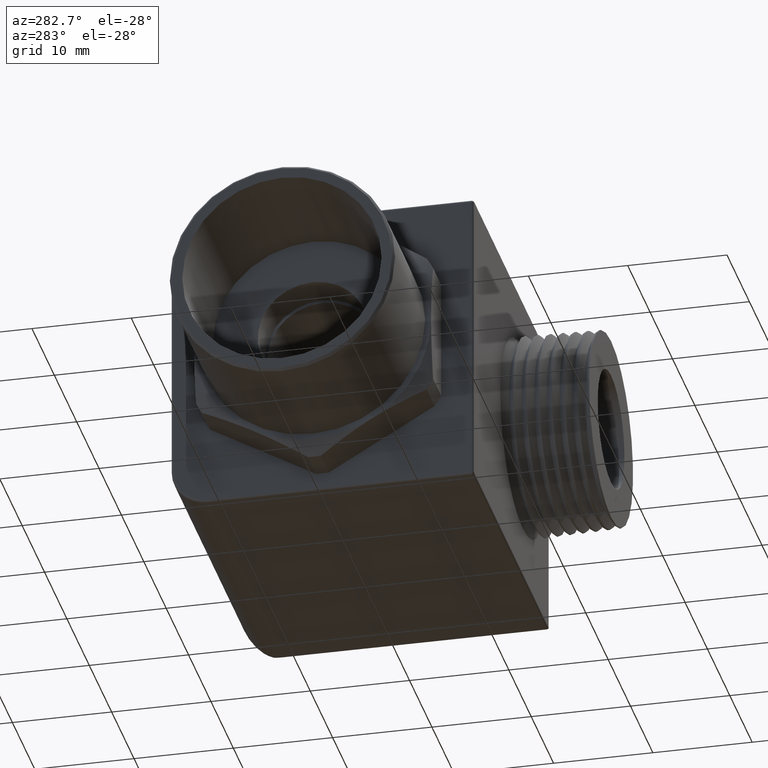
[diagram: clean part render]
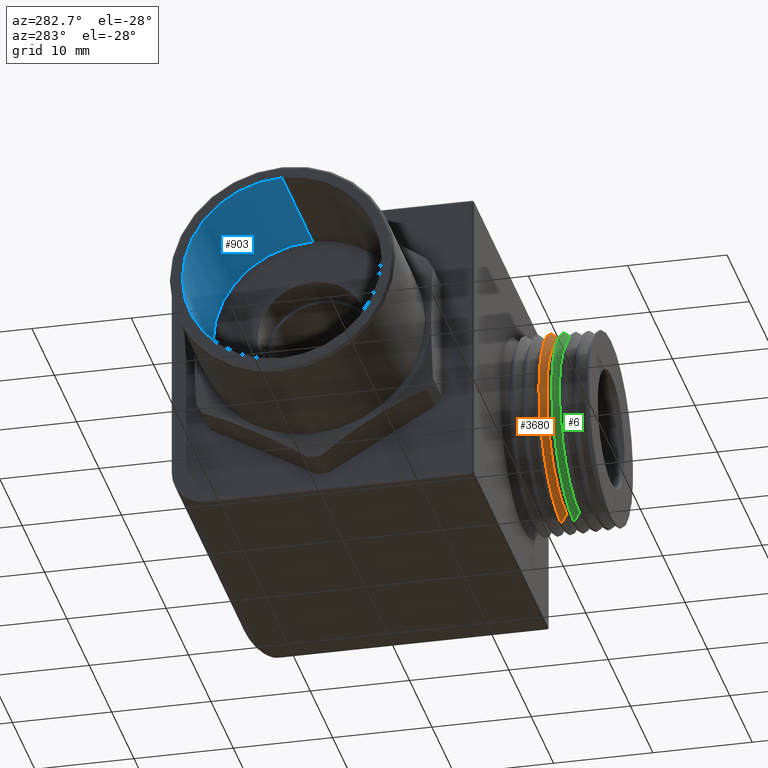
[diagram: same view with three faces highlighted in distinct colors, each labeled with its STEP entity id]
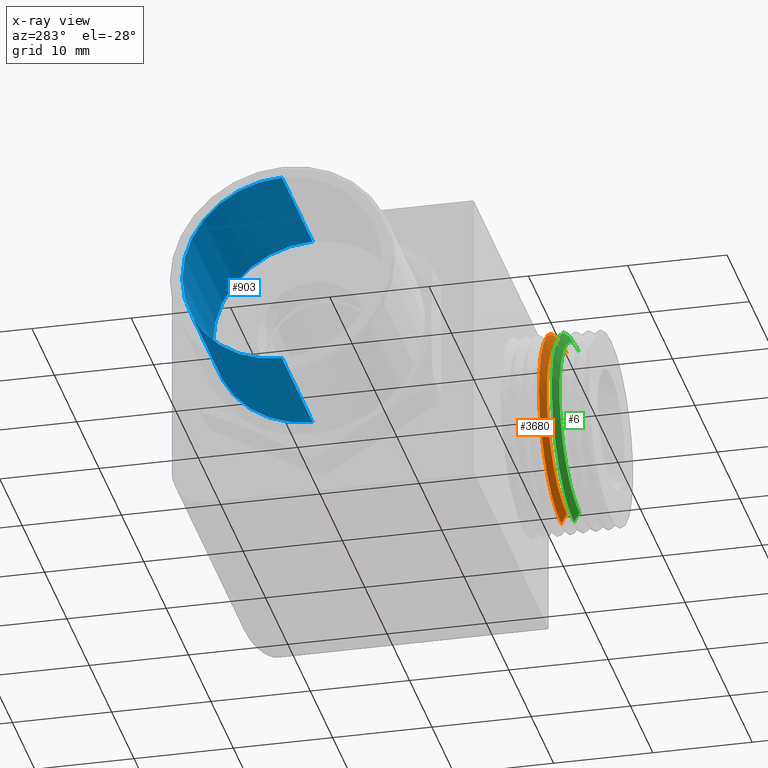
[diagram: x-ray of the same camera — body ghosted, the three highlighted faces saturated]
A machine part, auxiliary view with three faces highlighted in distinct colors.
The next image is the same camera in x-ray (body ghosted, the three faces saturated) — at least one of them is partly hidden behind the body in this view.
Their STEP definitions:

[orange] entity #3680 — the highlighted conical surface has half-angle 60 deg.
#215 = VERTEX_POINT ( 'NONE', #1568 ) ;
#216 = VERTEX_POINT ( 'NONE', #1567 ) ;
#218 = EDGE_CURVE ( 'NONE', #215, #219, #1566, .T. ) ;
#219 = VERTEX_POINT ( 'NONE', #1562 ) ;
#268 = VERTEX_POINT ( 'NONE', #1655 ) ;
#270 = EDGE_CURVE ( 'NONE', #216, #268, #1654, .T. ) ;
#509 = EDGE_CURVE ( 'NONE', #219, #268, #2086, .T. ) ;
#1562 = CARTESIAN_POINT ( 'NONE',  ( 0.5112500000000002000, -0.7523025787491231000, -0.3910118166180910300 ) ) ;
#1563 = DIRECTION ( 'NONE',  ( 1.060575238724906400E-016, 0.5000000000000004400, -0.8660254037844383700 ) ) ;
#1564 = VECTOR ( 'NONE', #1563, 39.37007874015748100 ) ;
#1565 = CARTESIAN_POINT ( 'NONE',  ( 0.5112500000000002000, -0.7746824456956933300, -0.3522487500000000000 ) ) ;
#1566 = LINE ( 'NONE', #1565, #1564 ) ;
#1567 = CARTESIAN_POINT ( 'NONE',  ( 0.5112500000000002000, -0.7746824456956933300, 0.3522487500000000000 ) ) ;
#1568 = CARTESIAN_POINT ( 'NONE',  ( 0.5112500000000002000, -0.7746824456956933300, -0.3522487500000000000 ) ) ;
#1651 = DIRECTION ( 'NONE',  ( 0.0000000000000000000, 0.5000000000000004400, 0.8660254037844383700 ) ) ;
#1652 = VECTOR ( 'NONE', #1651, 39.37007874015748100 ) ;
#1653 = CARTESIAN_POINT ( 'NONE',  ( 0.5112500000000002000, -0.7746824456956933300, 0.3522487500000000000 ) ) ;
#1654 = LINE ( 'NONE', #1653, #1652 ) ;
#1655 = CARTESIAN_POINT ( 'NONE',  ( 0.5112500000000002000, -0.7523025787491231000, 0.3910118166180910300 ) ) ;
#2083 = DIRECTION ( 'NONE',  ( 0.0000000000000000000, 0.0000000000000000000, 1.000000000000000000 ) ) ;
#2084 = DIRECTION ( 'NONE',  ( 0.0000000000000000000, 1.000000000000000000, 0.0000000000000000000 ) ) ;
#2085 = AXIS2_PLACEMENT_3D ( 'NONE', #2091, #2084, #2083 ) ;
#2086 = CIRCLE ( 'NONE', #2085, 0.3910118166180910300 ) ;
#2091 = CARTESIAN_POINT ( 'NONE',  ( 0.5112500000000002000, -0.7523025787491231000, -2.785979454945908300E-017 ) ) ;
#3439 = DIRECTION ( 'NONE',  ( 0.0000000000000000000, 0.0000000000000000000, 1.000000000000000000 ) ) ;
#3440 = DIRECTION ( 'NONE',  ( 0.0000000000000000000, 1.000000000000000000, 0.0000000000000000000 ) ) ;
#3441 = CARTESIAN_POINT ( 'NONE',  ( 0.5112500000000002000, -0.7746824456956933300, -2.785979454945908300E-017 ) ) ;
#3442 = AXIS2_PLACEMENT_3D ( 'NONE', #3441, #3440, #3439 ) ;
#3444 = CONICAL_SURFACE ( 'NONE', #3442, 0.3522487500000000000, 1.047197551196597200 ) ;
#3445 = FACE_OUTER_BOUND ( 'NONE', #3681, .T. ) ;
#3446 = DIRECTION ( 'NONE',  ( 0.0000000000000000000, 0.0000000000000000000, -1.000000000000000000 ) ) ;
#3447 = DIRECTION ( 'NONE',  ( 0.0000000000000000000, -1.000000000000000000, 0.0000000000000000000 ) ) ;
#3448 = CARTESIAN_POINT ( 'NONE',  ( 0.5112500000000002000, -0.7746824456956933300, -2.785979454945908300E-017 ) ) ;
#3449 = AXIS2_PLACEMENT_3D ( 'NONE', #3448, #3447, #3446 ) ;
#3450 = CIRCLE ( 'NONE', #3449, 0.3522487500000000000 ) ;
#3679 = EDGE_CURVE ( 'NONE', #216, #215, #3450, .T. ) ;
#3680 = ADVANCED_FACE ( 'NONE', ( #3445 ), #3444, .T. ) ;
#3681 = EDGE_LOOP ( 'NONE', ( #3706, #3704, #3703, #3698 ) ) ;
#3698 = ORIENTED_EDGE ( 'NONE', *, *, #509, .F. ) ;
#3703 = ORIENTED_EDGE ( 'NONE', *, *, #270, .T. ) ;
#3704 = ORIENTED_EDGE ( 'NONE', *, *, #3679, .F. ) ;
#3706 = ORIENTED_EDGE ( 'NONE', *, *, #218, .F. ) ;

[blue] entity #903 — the highlighted cylindrical surface (partial cylindrical patch) has radius 10.033 mm, axis along (-1, 0, 0).
#95 = VERTEX_POINT ( 'NONE', #1274 ) ;
#96 = VERTEX_POINT ( 'NONE', #1273 ) ;
#98 = EDGE_CURVE ( 'NONE', #107, #96, #1321, .T. ) ;
#103 = EDGE_CURVE ( 'NONE', #105, #95, #1307, .T. ) ;
#105 = VERTEX_POINT ( 'NONE', #1303 ) ;
#107 = VERTEX_POINT ( 'NONE', #1302 ) ;
#901 = EDGE_CURVE ( 'NONE', #96, #95, #2850, .T. ) ;
#903 = ADVANCED_FACE ( 'NONE', ( #2845 ), #2844, .F. ) ;
#904 = EDGE_LOOP ( 'NONE', ( #905, #906, #908, #961 ) ) ;
#905 = ORIENTED_EDGE ( 'NONE', *, *, #103, .F. ) ;
#906 = ORIENTED_EDGE ( 'NONE', *, *, #907, .F. ) ;
#907 = EDGE_CURVE ( 'NONE', #107, #105, #2838, .T. ) ;
#908 = ORIENTED_EDGE ( 'NONE', *, *, #98, .T. ) ;
#961 = ORIENTED_EDGE ( 'NONE', *, *, #901, .T. ) ;
#1273 = CARTESIAN_POINT ( 'NONE',  ( -1.064999999999999900, 0.0000000000000000000, 0.3950000000000000200 ) ) ;
#1274 = CARTESIAN_POINT ( 'NONE',  ( -1.064999999999999900, 4.837354856632045600E-017, -0.3950000000000000200 ) ) ;
#1302 = CARTESIAN_POINT ( 'NONE',  ( -0.5250000000000000200, 0.0000000000000000000, 0.3950000000000000200 ) ) ;
#1303 = CARTESIAN_POINT ( 'NONE',  ( -0.5250000000000000200, 4.837354856632045600E-017, -0.3950000000000000200 ) ) ;
#1304 = DIRECTION ( 'NONE',  ( -1.000000000000000000, 0.0000000000000000000, 0.0000000000000000000 ) ) ;
#1305 = VECTOR ( 'NONE', #1304, 39.37007874015748100 ) ;
#1306 = CARTESIAN_POINT ( 'NONE',  ( -0.5911096051061856000, 4.837354856632045600E-017, -0.3950000000000000200 ) ) ;
#1307 = LINE ( 'NONE', #1306, #1305 ) ;
#1318 = DIRECTION ( 'NONE',  ( -1.000000000000000000, 0.0000000000000000000, 0.0000000000000000000 ) ) ;
#1319 = VECTOR ( 'NONE', #1318, 39.37007874015748100 ) ;
#1320 = CARTESIAN_POINT ( 'NONE',  ( -0.5911096051061856000, 0.0000000000000000000, 0.3950000000000000200 ) ) ;
#1321 = LINE ( 'NONE', #1320, #1319 ) ;
#2835 = DIRECTION ( 'NONE',  ( 0.0000000000000000000, 0.0000000000000000000, 1.000000000000000000 ) ) ;
#2836 = DIRECTION ( 'NONE',  ( -1.000000000000000000, 0.0000000000000000000, 0.0000000000000000000 ) ) ;
#2837 = AXIS2_PLACEMENT_3D ( 'NONE', #2843, #2836, #2835 ) ;
#2838 = CIRCLE ( 'NONE', #2837, 0.3950000000000000200 ) ;
#2839 = DIRECTION ( 'NONE',  ( 0.0000000000000000000, 0.0000000000000000000, 1.000000000000000000 ) ) ;
#2840 = DIRECTION ( 'NONE',  ( -1.000000000000000000, 0.0000000000000000000, 0.0000000000000000000 ) ) ;
#2841 = CARTESIAN_POINT ( 'NONE',  ( -0.5911096051061856000, 0.0000000000000000000, 0.0000000000000000000 ) ) ;
#2842 = AXIS2_PLACEMENT_3D ( 'NONE', #2841, #2840, #2839 ) ;
#2843 = CARTESIAN_POINT ( 'NONE',  ( -0.5250000000000000200, 0.0000000000000000000, 0.0000000000000000000 ) ) ;
#2844 = CYLINDRICAL_SURFACE ( 'NONE', #2842, 0.3950000000000000200 ) ;
#2845 = FACE_OUTER_BOUND ( 'NONE', #904, .T. ) ;
#2846 = DIRECTION ( 'NONE',  ( 0.0000000000000000000, 0.0000000000000000000, 1.000000000000000000 ) ) ;
#2847 = DIRECTION ( 'NONE',  ( -1.000000000000000000, 0.0000000000000000000, 0.0000000000000000000 ) ) ;
#2848 = CARTESIAN_POINT ( 'NONE',  ( -1.064999999999999900, 0.0000000000000000000, 0.0000000000000000000 ) ) ;
#2849 = AXIS2_PLACEMENT_3D ( 'NONE', #2848, #2847, #2846 ) ;
#2850 = CIRCLE ( 'NONE', #2849, 0.3950000000000000200 ) ;

[green] entity #6 — the highlighted conical surface has half-angle 60 deg.
#1 = ORIENTED_EDGE ( 'NONE', *, *, #488, .F. ) ;
#2 = ORIENTED_EDGE ( 'NONE', *, *, #3685, .F. ) ;
#3 = ORIENTED_EDGE ( 'NONE', *, *, #239, .T. ) ;
#4 = EDGE_LOOP ( 'NONE', ( #5, #2, #3, #1 ) ) ;
#5 = ORIENTED_EDGE ( 'NONE', *, *, #161, .F. ) ;
#6 = ADVANCED_FACE ( 'NONE', ( #1095 ), #1092, .T. ) ;
#161 = EDGE_CURVE ( 'NONE', #166, #162, #1446, .T. ) ;
#162 = VERTEX_POINT ( 'NONE', #1442 ) ;
#166 = VERTEX_POINT ( 'NONE', #1430 ) ;
#168 = VERTEX_POINT ( 'NONE', #1429 ) ;
#239 = EDGE_CURVE ( 'NONE', #168, #240, #1587, .T. ) ;
#240 = VERTEX_POINT ( 'NONE', #1583 ) ;
#488 = EDGE_CURVE ( 'NONE', #162, #240, #2012, .T. ) ;
#1089 = DIRECTION ( 'NONE',  ( 0.0000000000000000000, 0.0000000000000000000, 1.000000000000000000 ) ) ;
#1090 = DIRECTION ( 'NONE',  ( 0.0000000000000000000, 1.000000000000000000, 0.0000000000000000000 ) ) ;
#1091 = AXIS2_PLACEMENT_3D ( 'NONE', #1094, #1090, #1089 ) ;
#1092 = CONICAL_SURFACE ( 'NONE', #1091, 0.3522487500000000000, 1.047197551196597200 ) ;
#1094 = CARTESIAN_POINT ( 'NONE',  ( 0.5112500000000002000, -0.8246824456956932700, -2.785979454945908300E-017 ) ) ;
#1095 = FACE_OUTER_BOUND ( 'NONE', #4, .T. ) ;
#1429 = CARTESIAN_POINT ( 'NONE',  ( 0.5112500000000002000, -0.8246824456956932700, 0.3522487500000000000 ) ) ;
#1430 = CARTESIAN_POINT ( 'NONE',  ( 0.5112500000000002000, -0.8246824456956932700, -0.3522487500000000000 ) ) ;
#1442 = CARTESIAN_POINT ( 'NONE',  ( 0.5112500000000002000, -0.8030701049988306900, -0.3896824221574548000 ) ) ;
#1443 = DIRECTION ( 'NONE',  ( 1.060575238724906400E-016, 0.5000000000000004400, -0.8660254037844383700 ) ) ;
#1444 = VECTOR ( 'NONE', #1443, 39.37007874015748100 ) ;
#1445 = CARTESIAN_POINT ( 'NONE',  ( 0.5112500000000002000, -0.8246824456956932700, -0.3522487500000000000 ) ) ;
#1446 = LINE ( 'NONE', #1445, #1444 ) ;
#1583 = CARTESIAN_POINT ( 'NONE',  ( 0.5112500000000002000, -0.8030701049988306900, 0.3896824221574548000 ) ) ;
#1584 = DIRECTION ( 'NONE',  ( 0.0000000000000000000, 0.5000000000000004400, 0.8660254037844383700 ) ) ;
#1585 = VECTOR ( 'NONE', #1584, 39.37007874015748100 ) ;
#1586 = CARTESIAN_POINT ( 'NONE',  ( 0.5112500000000002000, -0.8246824456956932700, 0.3522487500000000000 ) ) ;
#1587 = LINE ( 'NONE', #1586, #1585 ) ;
#2010 = DIRECTION ( 'NONE',  ( 0.0000000000000000000, 1.000000000000000000, 0.0000000000000000000 ) ) ;
#2011 = AXIS2_PLACEMENT_3D ( 'NONE', #2016, #2010, #2064 ) ;
#2012 = CIRCLE ( 'NONE', #2011, 0.3896824221574548000 ) ;
#2016 = CARTESIAN_POINT ( 'NONE',  ( 0.5112500000000002000, -0.8030701049988306900, -2.785979454945908300E-017 ) ) ;
#2064 = DIRECTION ( 'NONE',  ( 0.0000000000000000000, 0.0000000000000000000, 1.000000000000000000 ) ) ;
#3435 = DIRECTION ( 'NONE',  ( 0.0000000000000000000, 0.0000000000000000000, -1.000000000000000000 ) ) ;
#3436 = DIRECTION ( 'NONE',  ( 0.0000000000000000000, -1.000000000000000000, 0.0000000000000000000 ) ) ;
#3437 = AXIS2_PLACEMENT_3D ( 'NONE', #3443, #3436, #3435 ) ;
#3438 = CIRCLE ( 'NONE', #3437, 0.3522487500000000000 ) ;
#3443 = CARTESIAN_POINT ( 'NONE',  ( 0.5112500000000002000, -0.8246824456956932700, -2.785979454945908300E-017 ) ) ;
#3685 = EDGE_CURVE ( 'NONE', #168, #166, #3438, .T. ) ;